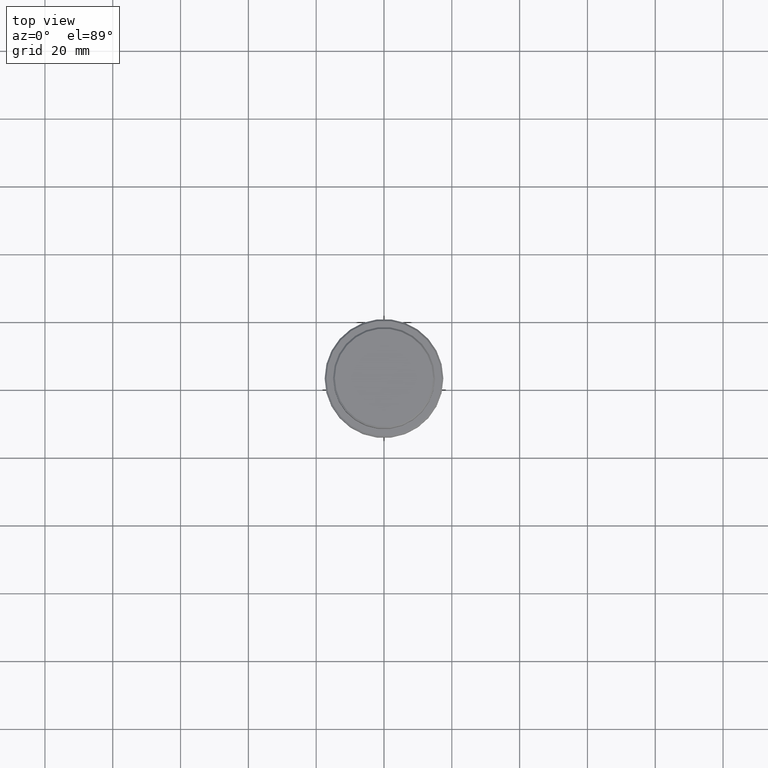
[diagram: clean part render]
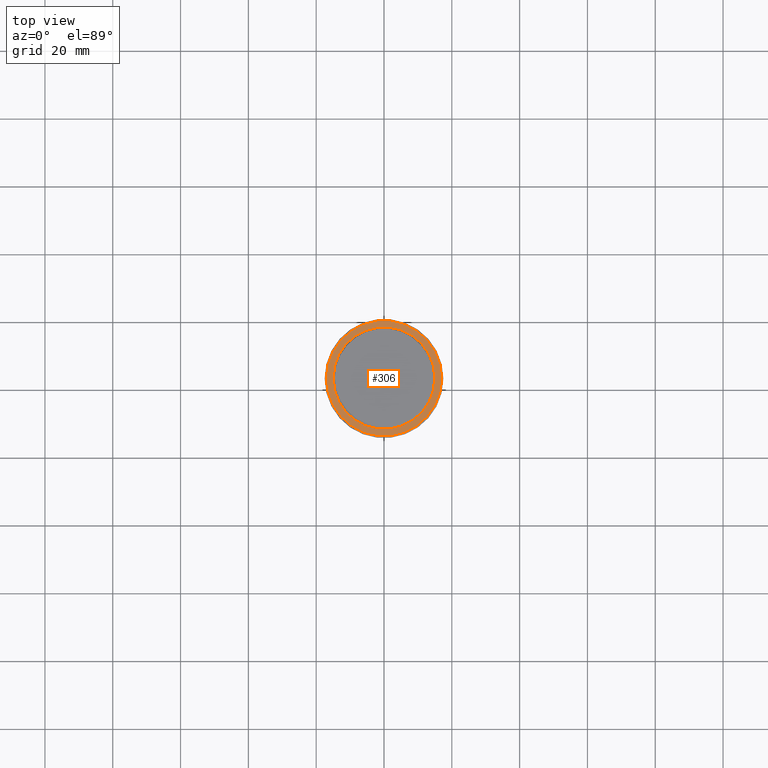
[diagram: same view with one face highlighted and labeled with its STEP entity id]
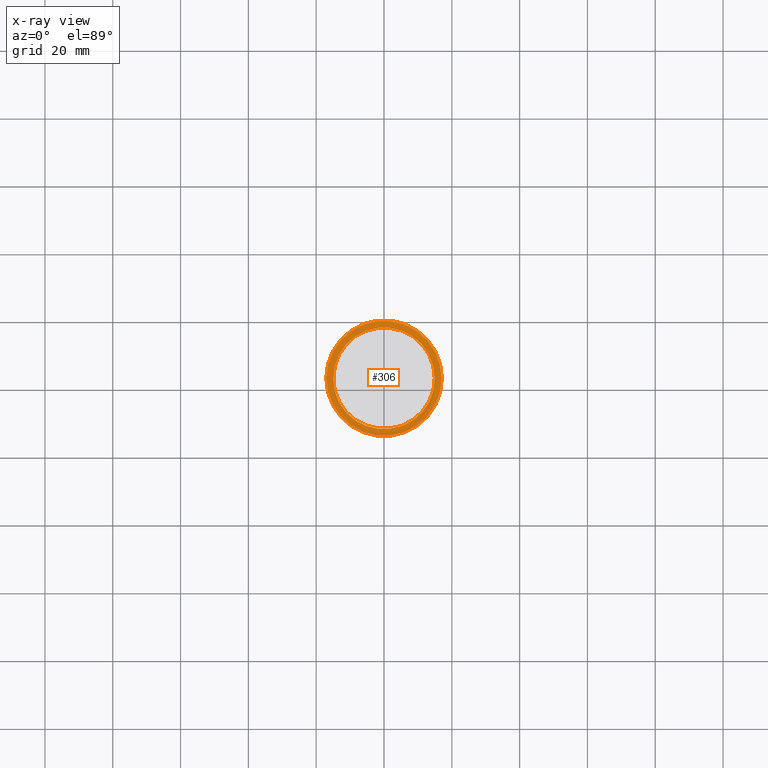
[diagram: x-ray of the same camera — body ghosted, the highlighted face saturated]
A machine part, top view. The second image highlights one B-rep face of the part: STEP entity #306.
The next image is the same camera in x-ray: the body ghosted, the highlighted face saturated — about 0% of this face is hidden behind the body in this view.
In plain terms, the highlighted planar face has unit normal (0, -0, 1).
Its self-contained STEP definition (entity closure, byte-faithful):
#18 = AXIS2_PLACEMENT_3D ( 'NONE', #567, #1414, #136 ) ;
#28 = VERTEX_POINT ( 'NONE', #782 ) ;
#34 = CARTESIAN_POINT ( 'NONE',  ( 0.000000000000000000, 0.000000000000000000, -9.000000000000001776 ) ) ;
#54 = CARTESIAN_POINT ( 'NONE',  ( 0.000000000000000000, 0.000000000000000000, -9.000000000000001776 ) ) ;
#136 = DIRECTION ( 'NONE',  ( 1.000000000000000000, 0.000000000000000000, 0.000000000000000000 ) ) ;
#253 = VERTEX_POINT ( 'NONE', #1069 ) ;
#259 = DIRECTION ( 'NONE',  ( -0.000000000000000000, -0.000000000000000000, 1.000000000000000000 ) ) ;
#306 = ADVANCED_FACE ( 'NONE', ( #1327, #777 ), #786, .T. ) ;
#352 = CIRCLE ( 'NONE', #373, 14.99999999999999467 ) ;
#371 = CARTESIAN_POINT ( 'NONE',  ( 0.000000000000000000, 0.000000000000000000, -9.000000000000001776 ) ) ;
#373 = AXIS2_PLACEMENT_3D ( 'NONE', #54, #506, #1367 ) ;
#378 = AXIS2_PLACEMENT_3D ( 'NONE', #371, #793, #1308 ) ;
#427 = AXIS2_PLACEMENT_3D ( 'NONE', #872, #577, #983 ) ;
#469 = DIRECTION ( 'NONE',  ( 1.000000000000000000, 0.000000000000000000, 0.000000000000000000 ) ) ;
#471 = EDGE_CURVE ( 'NONE', #736, #253, #352, .T. ) ;
#495 = CARTESIAN_POINT ( 'NONE',  ( -16.99999999999998579, 0.000000000000000000, -9.000000000000001776 ) ) ;
#506 = DIRECTION ( 'NONE',  ( 0.000000000000000000, 0.000000000000000000, -1.000000000000000000 ) ) ;
#567 = CARTESIAN_POINT ( 'NONE',  ( 0.000000000000000000, 14.49999999999999467, -9.000000000000001776 ) ) ;
#577 = DIRECTION ( 'NONE',  ( -0.000000000000000000, -0.000000000000000000, 1.000000000000000000 ) ) ;
#590 = CARTESIAN_POINT ( 'NONE',  ( -14.99999999999999467, 1.836970198721029194E-15, -9.000000000000001776 ) ) ;
#736 = VERTEX_POINT ( 'NONE', #590 ) ;
#777 = FACE_BOUND ( 'NONE', #1322, .T. ) ;
#779 = ORIENTED_EDGE ( 'NONE', *, *, #839, .T. ) ;
#782 = CARTESIAN_POINT ( 'NONE',  ( 16.99999999999998579, 2.112515728529183278E-15, -9.000000000000001776 ) ) ;
#786 = PLANE ( 'NONE',  #18 ) ;
#793 = DIRECTION ( 'NONE',  ( 0.000000000000000000, 0.000000000000000000, -1.000000000000000000 ) ) ;
#834 = VERTEX_POINT ( 'NONE', #495 ) ;
#839 = EDGE_CURVE ( 'NONE', #28, #834, #899, .T. ) ;
#872 = CARTESIAN_POINT ( 'NONE',  ( 0.000000000000000000, 0.000000000000000000, -9.000000000000001776 ) ) ;
#899 = CIRCLE ( 'NONE', #923, 16.99999999999998579 ) ;
#923 = AXIS2_PLACEMENT_3D ( 'NONE', #34, #259, #469 ) ;
#983 = DIRECTION ( 'NONE',  ( 1.000000000000000000, 0.000000000000000000, 0.000000000000000000 ) ) ;
#1061 = ORIENTED_EDGE ( 'NONE', *, *, #1173, .T. ) ;
#1069 = CARTESIAN_POINT ( 'NONE',  ( 14.99999999999999467, 0.000000000000000000, -9.000000000000001776 ) ) ;
#1096 = ORIENTED_EDGE ( 'NONE', *, *, #471, .T. ) ;
#1173 = EDGE_CURVE ( 'NONE', #834, #28, #1223, .T. ) ;
#1223 = CIRCLE ( 'NONE', #427, 16.99999999999998579 ) ;
#1262 = ORIENTED_EDGE ( 'NONE', *, *, #1406, .T. ) ;
#1272 = CIRCLE ( 'NONE', #378, 14.99999999999999467 ) ;
#1308 = DIRECTION ( 'NONE',  ( 1.000000000000000000, 0.000000000000000000, 0.000000000000000000 ) ) ;
#1317 = EDGE_LOOP ( 'NONE', ( #1061, #779 ) ) ;
#1322 = EDGE_LOOP ( 'NONE', ( #1262, #1096 ) ) ;
#1327 = FACE_OUTER_BOUND ( 'NONE', #1317, .T. ) ;
#1367 = DIRECTION ( 'NONE',  ( 1.000000000000000000, 0.000000000000000000, 0.000000000000000000 ) ) ;
#1406 = EDGE_CURVE ( 'NONE', #253, #736, #1272, .T. ) ;
#1414 = DIRECTION ( 'NONE',  ( 0.000000000000000000, -0.000000000000000000, 1.000000000000000000 ) ) ;